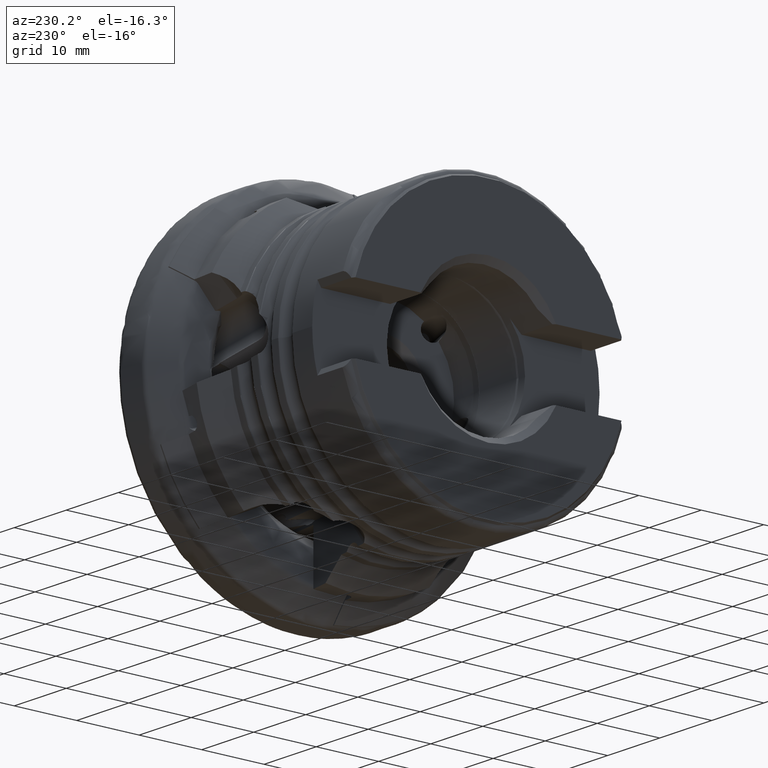
[diagram: clean part render]
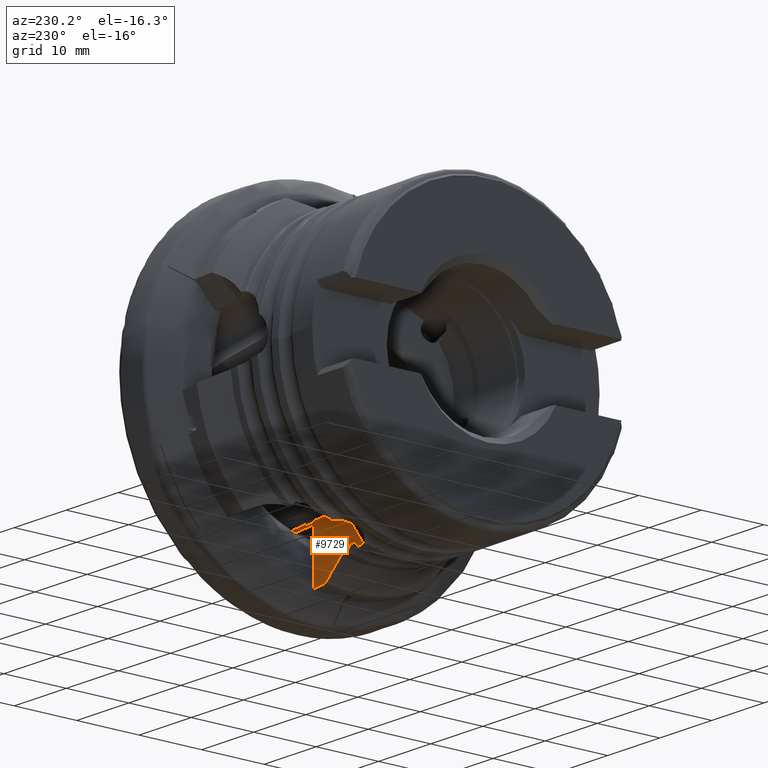
[diagram: same view with one face highlighted and labeled with its STEP entity id]
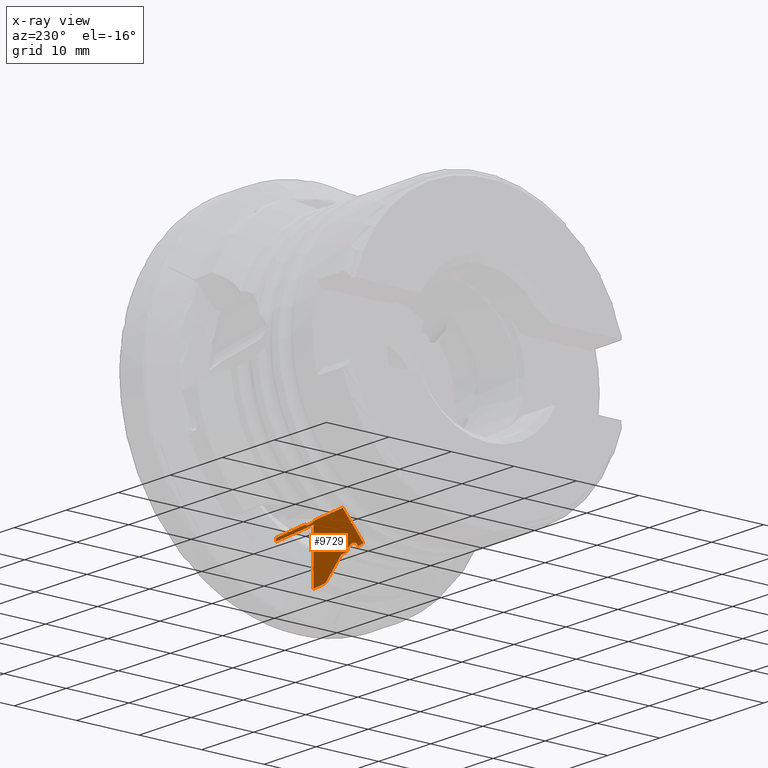
[diagram: x-ray of the same camera — body ghosted, the highlighted face saturated]
A machine part, auxiliary view. The second image highlights one B-rep face of the part: STEP entity #9729.
The next image is the same camera in x-ray: the body ghosted, the highlighted face saturated — about 3% of this face is hidden behind the body in this view.
In plain terms, the highlighted planar face has unit normal (-0.1392, -0.9903, -0).
Its self-contained STEP definition (entity closure, byte-faithful):
#46 = CARTESIAN_POINT ( 'NONE',  ( -1.999999999999986200, 3.098500596731691600, -16.94213243200000100 ) ) ;
#65 = EDGE_CURVE ( 'NONE', #2356, #8409, #7799, .T. ) ;
#92 = VERTEX_POINT ( 'NONE', #6528 ) ;
#169 = CARTESIAN_POINT ( 'NONE',  ( -17.41751930288015200, 5.265291628598455500, -16.47000000000000200 ) ) ;
#372 = CARTESIAN_POINT ( 'NONE',  ( -18.40607010177601000, 5.404223383020981200, -22.26529432916003500 ) ) ;
#452 = VECTOR ( 'NONE', #8694, 1000.000000000000000 ) ;
#501 = CARTESIAN_POINT ( 'NONE',  ( -10.63127897409680100, 4.311547748300319500, -16.94213243200000100 ) ) ;
#540 = B_SPLINE_CURVE_WITH_KNOTS ( 'NONE', 3,
 ( #6286, #3527, #8376, #372 ),
 .UNSPECIFIED., .F., .F.,
 ( 4, 4 ),
 ( 1.991331392997927200E-007, 0.0001999983619013351000 ),
 .UNSPECIFIED. ) ;
#734 = CARTESIAN_POINT ( 'NONE',  ( -20.99445424289538000, 5.767997050744289000, -22.26500168444236700 ) ) ;
#856 = CARTESIAN_POINT ( 'NONE',  ( -17.41751930288015200, 5.265291628598455500, -16.47000000000000200 ) ) ;
#859 = LINE ( 'NONE', #6558, #7116 ) ;
#1006 =( BOUNDED_CURVE ( )  B_SPLINE_CURVE ( 3, ( #1095, #5497, #2351, #8652 ),
 .UNSPECIFIED., .F., .T. ) 
 B_SPLINE_CURVE_WITH_KNOTS ( ( 4, 4 ),
 ( 1.799726035625061100, 1.806937630340256200 ),
 .UNSPECIFIED. ) 
 CURVE ( )  GEOMETRIC_REPRESENTATION_ITEM ( )  RATIONAL_B_SPLINE_CURVE ( ( 1.000000000000000000, 0.9999956660798343700, 0.9999956660798343700, 1.000000000000000000 ) ) 
 REPRESENTATION_ITEM ( '' )  );
#1050 = EDGE_CURVE ( 'NONE', #2586, #9400, #8518, .T. ) ;
#1093 = CARTESIAN_POINT ( 'NONE',  ( -12.51176307190210000, 4.575832553050422500, -25.13726824254642300 ) ) ;
#1095 = CARTESIAN_POINT ( 'NONE',  ( -17.09177741719236500, 5.219511592086369100, -22.39992631104121700 ) ) ;
#1212 = CARTESIAN_POINT ( 'NONE',  ( -21.43883653243956600, 5.830450908643780600, -22.24879482589003000 ) ) ;
#1444 = CARTESIAN_POINT ( 'NONE',  ( -1.999999999999992200, 3.098500596731692500, -16.47000000000000200 ) ) ;
#1679 = ORIENTED_EDGE ( 'NONE', *, *, #6561, .T. ) ;
#1912 = CARTESIAN_POINT ( 'NONE',  ( -8.729553343563967600, 4.044277640810334700, -16.47000000000000200 ) ) ;
#2020 = CARTESIAN_POINT ( 'NONE',  ( -21.05978721798716800, 5.777179001597277300, -22.26261895607755600 ) ) ;
#2051 = VERTEX_POINT ( 'NONE', #3366 ) ;
#2159 = CARTESIAN_POINT ( 'NONE',  ( -19.87527271462111500, 5.610706344577143200, -21.52778656604159500 ) ) ;
#2231 = ORIENTED_EDGE ( 'NONE', *, *, #6722, .T. ) ;
#2351 = CARTESIAN_POINT ( 'NONE',  ( -17.85772871578347700, 5.327159026931732400, -22.37463817755936900 ) ) ;
#2356 = VERTEX_POINT ( 'NONE', #5027 ) ;
#2586 = VERTEX_POINT ( 'NONE', #3178 ) ;
#2700 = DIRECTION ( 'NONE',  ( 0.9902680687415724700, -0.1391731009600498900, 0.0000000000000000000 ) ) ;
#2795 = ORIENTED_EDGE ( 'NONE', *, *, #65, .T. ) ;
#2848 = CARTESIAN_POINT ( 'NONE',  ( -10.63127897409680100, 4.311547748300319500, -16.94213243200000100 ) ) ;
#2873 = CARTESIAN_POINT ( 'NONE',  ( -22.19586378199259300, 5.936844150188407300, -22.22057338450957800 ) ) ;
#3041 = CARTESIAN_POINT ( 'NONE',  ( -20.56510137431623900, 5.707655440212317200, -21.80105751620286700 ) ) ;
#3178 = CARTESIAN_POINT ( 'NONE',  ( -10.63127897409680300, 4.311547748300322200, -25.18358703628468500 ) ) ;
#3251 = ORIENTED_EDGE ( 'NONE', *, *, #6400, .T. ) ;
#3267 = CARTESIAN_POINT ( 'NONE',  ( -44.39937388231479100, 9.057343993010315200, -48.94173482101594900 ) ) ;
#3298 = CARTESIAN_POINT ( 'NONE',  ( -22.19586378199259300, 5.936844150188407300, -22.22057338450957800 ) ) ;
#3366 = CARTESIAN_POINT ( 'NONE',  ( -18.24021278201281900, 5.380913656859963400, -22.36170316003274300 ) ) ;
#3527 = CARTESIAN_POINT ( 'NONE',  ( -18.30709545130390500, 5.390313403029256100, -22.35944129195537000 ) ) ;
#3782 = EDGE_CURVE ( 'NONE', #2586, #2356, #6039, .T. ) ;
#3872 = CARTESIAN_POINT ( 'NONE',  ( -44.39937388231479100, 9.057343993010315200, -48.94173482101594900 ) ) ;
#3987 = LINE ( 'NONE', #9212, #8262 ) ;
#4005 = VECTOR ( 'NONE', #6233, 1000.000000000000000 ) ;
#4048 = CARTESIAN_POINT ( 'NONE',  ( -20.93049235371987400, 5.759007793450421400, -22.23223141898391800 ) ) ;
#4080 = EDGE_CURVE ( 'NONE', #6232, #6861, #6699, .T. ) ;
#4095 = CARTESIAN_POINT ( 'NONE',  ( -18.82730074594232800, 5.463423489354333600, -21.81634681860890600 ) ) ;
#4388 = ORIENTED_EDGE ( 'NONE', *, *, #7699, .T. ) ;
#4420 = CARTESIAN_POINT ( 'NONE',  ( -18.72774135144591800, 5.449431328949345700, -21.89301869045383600 ) ) ;
#4830 = CARTESIAN_POINT ( 'NONE',  ( -20.89392989822397700, 5.753869275436259500, -22.17751001124579000 ) ) ;
#4870 = CARTESIAN_POINT ( 'NONE',  ( -19.14321611765307900, 5.507822499389875200, -21.62775173695806800 ) ) ;
#4892 = ORIENTED_EDGE ( 'NONE', *, *, #5880, .F. ) ;
#4953 = VERTEX_POINT ( 'NONE', #10379 ) ;
#5027 = CARTESIAN_POINT ( 'NONE',  ( -13.44999999999999400, 4.707693154073893100, -25.11254915708649400 ) ) ;
#5134 = CARTESIAN_POINT ( 'NONE',  ( -11.57216996814176300, 4.443781353967350100, -25.16094802525176300 ) ) ;
#5190 = CARTESIAN_POINT ( 'NONE',  ( -10.63127897409680300, 4.311547748300322200, -25.18358703628468500 ) ) ;
#5283 = B_SPLINE_CURVE_WITH_KNOTS ( 'NONE', 3,
 ( #4830, #4048, #734, #6444 ),
 .UNSPECIFIED., .F., .F.,
 ( 4, 4 ),
 ( 3.565975093437033300E-007, 0.0001956915875105522100 ),
 .UNSPECIFIED. ) ;
#5297 = CARTESIAN_POINT ( 'NONE',  ( -21.81753034670565600, 5.883672853397363200, -22.23477957518021600 ) ) ;
#5469 = ORIENTED_EDGE ( 'NONE', *, *, #3782, .T. ) ;
#5497 = CARTESIAN_POINT ( 'NONE',  ( -17.47491526842708600, 5.273358105504971900, -22.38737928311446600 ) ) ;
#5514 = ORIENTED_EDGE ( 'NONE', *, *, #1050, .F. ) ;
#5629 = CARTESIAN_POINT ( 'NONE',  ( -19.38510995725043900, 5.541818461516250200, -21.55230713086845300 ) ) ;
#5680 = CARTESIAN_POINT ( 'NONE',  ( -9.192966182745983900, 4.109406068040774700, -16.77343128295305500 ) ) ;
#5772 = CARTESIAN_POINT ( 'NONE',  ( -18.47342200236234400, 5.413689075348173700, -22.16014548844846700 ) ) ;
#5880 = EDGE_CURVE ( 'NONE', #10293, #8611, #859, .T. ) ;
#5905 = CARTESIAN_POINT ( 'NONE',  ( -13.44999999999999400, 4.707693154073893100, -25.11254915708649400 ) ) ;
#5948 = CARTESIAN_POINT ( 'NONE',  ( -10.00663903751373600, 4.223760330224500600, -16.77343128295305500 ) ) ;
#5999 = CARTESIAN_POINT ( 'NONE',  ( -13.44999999999999400, 4.707693154073893100, -25.11254915708649400 ) ) ;
#6039 =( BOUNDED_CURVE ( )  B_SPLINE_CURVE ( 3, ( #5190, #5134, #1093, #5999 ),
 .UNSPECIFIED., .F., .T. ) 
 B_SPLINE_CURVE_WITH_KNOTS ( ( 4, 4 ),
 ( 1.740357084894127900, 1.756109277582174100 ),
 .UNSPECIFIED. ) 
 CURVE ( )  GEOMETRIC_REPRESENTATION_ITEM ( )  RATIONAL_B_SPLINE_CURVE ( ( 1.000000000000000000, 0.9999793224756841100, 0.9999793224756841100, 1.000000000000000000 ) ) 
 REPRESENTATION_ITEM ( '' )  );
#6062 = EDGE_CURVE ( 'NONE', #10459, #92, #8498, .T. ) ;
#6141 = EDGE_CURVE ( 'Kante58', #9400, #10293, #3987, .T. ) ;
#6205 = DIRECTION ( 'NONE',  ( 0.9902680687415723600, -0.1391731009600499800, -0.0000000000000000000 ) ) ;
#6232 = VERTEX_POINT ( 'NONE', #10105 ) ;
#6233 = DIRECTION ( 'NONE',  ( 1.284980352575412900E-016, -1.606225440719266200E-017, 1.000000000000000000 ) ) ;
#6286 = CARTESIAN_POINT ( 'NONE',  ( -18.24021278201281900, 5.380913656859963400, -22.36170316003274300 ) ) ;
#6362 = VECTOR ( 'NONE', #6729, 1000.000000000000200 ) ;
#6400 = EDGE_CURVE ( 'NONE', #6861, #10459, #8899, .T. ) ;
#6444 = CARTESIAN_POINT ( 'NONE',  ( -21.05978721798716800, 5.777179001597277300, -22.26261895607755600 ) ) ;
#6491 = AXIS2_PLACEMENT_3D ( 'NONE', #3267, #7964, #10119 ) ;
#6494 = CARTESIAN_POINT ( 'NONE',  ( -17.41751930288015200, 5.265291628598455500, -16.47000000000000200 ) ) ;
#6528 = CARTESIAN_POINT ( 'NONE',  ( -10.98786893926590700, 4.361663199651677500, -16.47000000000000200 ) ) ;
#6529 = CARTESIAN_POINT ( 'NONE',  ( -20.89392989822397700, 5.753869275436259500, -22.17751001124579000 ) ) ;
#6558 = CARTESIAN_POINT ( 'NONE',  ( -1.999999999999991800, 3.098500596731691600, -5.807524139047354400E-016 ) ) ;
#6561 = EDGE_CURVE ( 'NONE', #4953, #8611, #10556, .T. ) ;
#6699 =( BOUNDED_CURVE ( )  B_SPLINE_CURVE ( 3, ( #2020, #1212, #5297, #2873 ),
 .UNSPECIFIED., .F., .T. ) 
 B_SPLINE_CURVE_WITH_KNOTS ( ( 4, 4 ),
 ( 1.824697224687572300, 1.831875866980178000 ),
 .UNSPECIFIED. ) 
 CURVE ( )  GEOMETRIC_REPRESENTATION_ITEM ( )  RATIONAL_B_SPLINE_CURVE ( ( 1.000000000000000000, 0.9999957055958468300, 0.9999957055958468300, 1.000000000000000000 ) ) 
 REPRESENTATION_ITEM ( '' )  );
#6704 =( BOUNDED_CURVE ( )  B_SPLINE_CURVE ( 3, ( #1912, #5680, #5948, #9755 ),
 .UNSPECIFIED., .F., .F. ) 
 B_SPLINE_CURVE_WITH_KNOTS ( ( 4, 4 ),
 ( 3.404859809271589400, 4.361673562863455100 ),
 .UNSPECIFIED. ) 
 CURVE ( )  GEOMETRIC_REPRESENTATION_ITEM ( )  RATIONAL_B_SPLINE_CURVE ( ( 1.000000000000000000, 0.9251529786487046000, 0.9251529786487046000, 1.000000000000000000 ) ) 
 REPRESENTATION_ITEM ( '' )  );
#6706 = ORIENTED_EDGE ( 'NONE', *, *, #4080, .T. ) ;
#6713 = CARTESIAN_POINT ( 'NONE',  ( -17.09177741719236500, 5.219511592086369100, -22.39992631104121700 ) ) ;
#6722 = EDGE_CURVE ( 'NONE', #9711, #6232, #5283, .T. ) ;
#6729 = DIRECTION ( 'NONE',  ( 0.9902680687415724700, -0.1391731009600498900, 0.0000000000000000000 ) ) ;
#6815 = CARTESIAN_POINT ( 'NONE',  ( -14.66744534277638800, 4.878793938752207500, -24.21315995393682700 ) ) ;
#6861 = VERTEX_POINT ( 'NONE', #3298 ) ;
#6895 = CARTESIAN_POINT ( 'NONE',  ( -15.88177324624308400, 5.049456595907801500, -23.30950282935201300 ) ) ;
#6978 = CARTESIAN_POINT ( 'NONE',  ( -18.55134940448594000, 5.424641057488814000, -22.06477410000214700 ) ) ;
#7116 = VECTOR ( 'NONE', #8207, 1000.000000000000000 ) ;
#7699 = EDGE_CURVE ( 'NONE', #8409, #2051, #1006, .T. ) ;
#7713 = CARTESIAN_POINT ( 'NONE',  ( -18.40607010177601000, 5.404223383020981200, -22.26529432916003500 ) ) ;
#7799 = B_SPLINE_CURVE_WITH_KNOTS ( 'NONE', 3,
 ( #5905, #6815, #6895, #6713 ),
 .UNSPECIFIED., .F., .F.,
 ( 4, 4 ),
 ( 2.502383203222509200E-007, 0.004570023052667729000 ),
 .UNSPECIFIED. ) ;
#7964 = DIRECTION ( 'NONE',  ( -0.1391731009600499200, -0.9902680687415725800, -9.348949477730527800E-017 ) ) ;
#8207 = DIRECTION ( 'NONE',  ( 1.560832153439438500E-032, -9.440826956695799200E-017, 1.000000000000000000 ) ) ;
#8262 = VECTOR ( 'NONE', #6205, 1000.000000000000200 ) ;
#8376 = CARTESIAN_POINT ( 'NONE',  ( -18.36975526037837300, 5.399119664898872600, -22.32198854922428000 ) ) ;
#8409 = VERTEX_POINT ( 'NONE', #9049 ) ;
#8423 = PLANE ( 'NONE',  #6491 ) ;
#8476 = EDGE_LOOP ( 'NONE', ( #8987, #1679, #4892, #9022, #5514, #5469, #2795, #4388, #8522, #10006, #2231, #6706, #3251, #9721 ) ) ;
#8498 = LINE ( 'NONE', #856, #6362 ) ;
#8518 = LINE ( 'NONE', #501, #4005 ) ;
#8522 = ORIENTED_EDGE ( 'NONE', *, *, #9949, .T. ) ;
#8611 = VERTEX_POINT ( 'NONE', #1444 ) ;
#8652 = CARTESIAN_POINT ( 'NONE',  ( -18.24021278201281900, 5.380913656859963400, -22.36170316003274300 ) ) ;
#8694 = DIRECTION ( 'NONE',  ( 0.6365320448552990200, -0.08945874489877370100, 0.7660444431189797900 ) ) ;
#8863 = B_SPLINE_CURVE_WITH_KNOTS ( 'NONE', 3,
 ( #10212, #5772, #6978, #4420, #4095, #4870, #5629, #2159, #9136, #3041, #9530, #9229 ),
 .UNSPECIFIED., .F., .F.,
 ( 4, 2, 2, 2, 2, 4 ),
 ( 3.667358128206094000E-007, 0.0003708136106012151000, 0.0007412604853896095700, 0.001482154234966393000, 0.002223047984543176700, 0.002963941734119959600 ),
 .UNSPECIFIED. ) ;
#8899 = LINE ( 'NONE', #3872, #452 ) ;
#8987 = ORIENTED_EDGE ( 'NONE', *, *, #10039, .F. ) ;
#9022 = ORIENTED_EDGE ( 'NONE', *, *, #6141, .F. ) ;
#9026 = VERTEX_POINT ( 'NONE', #7713 ) ;
#9049 = CARTESIAN_POINT ( 'NONE',  ( -17.09177741719236500, 5.219511592086369100, -22.39992631104121700 ) ) ;
#9136 = CARTESIAN_POINT ( 'NONE',  ( -20.12512364647892900, 5.645820603091604700, -21.57940549959432600 ) ) ;
#9212 = CARTESIAN_POINT ( 'NONE',  ( 14.12542274444251200, 0.8322202242990705000, -16.94213243200000100 ) ) ;
#9229 = CARTESIAN_POINT ( 'NONE',  ( -20.89392989822397700, 5.753869275436259500, -22.17751001124579000 ) ) ;
#9400 = VERTEX_POINT ( 'NONE', #2848 ) ;
#9530 = CARTESIAN_POINT ( 'NONE',  ( -20.75505808333713300, 5.734352114655429500, -21.96966671673267900 ) ) ;
#9711 = VERTEX_POINT ( 'NONE', #6529 ) ;
#9721 = ORIENTED_EDGE ( 'NONE', *, *, #6062, .T. ) ;
#9729 = ADVANCED_FACE ( 'NONE', ( #9892 ), #8423, .F. ) ;
#9755 = CARTESIAN_POINT ( 'NONE',  ( -10.98786893926590700, 4.361663199651677500, -16.47000000000000200 ) ) ;
#9765 = EDGE_CURVE ( 'NONE', #9026, #9711, #8863, .T. ) ;
#9892 = FACE_OUTER_BOUND ( 'NONE', #8476, .T. ) ;
#9949 = EDGE_CURVE ( 'NONE', #2051, #9026, #540, .T. ) ;
#10006 = ORIENTED_EDGE ( 'NONE', *, *, #9765, .T. ) ;
#10039 = EDGE_CURVE ( 'NONE', #4953, #92, #6704, .T. ) ;
#10105 = CARTESIAN_POINT ( 'NONE',  ( -21.05978721798716800, 5.777179001597277300, -22.26261895607755600 ) ) ;
#10119 = DIRECTION ( 'NONE',  ( 0.9902680687415724700, -0.1391731009600498900, 0.0000000000000000000 ) ) ;
#10212 = CARTESIAN_POINT ( 'NONE',  ( -18.40607010177601000, 5.404223383020981200, -22.26529432916003500 ) ) ;
#10293 = VERTEX_POINT ( 'NONE', #46 ) ;
#10294 = VECTOR ( 'NONE', #2700, 1000.000000000000200 ) ;
#10379 = CARTESIAN_POINT ( 'NONE',  ( -8.729553343563967600, 4.044277640810334700, -16.47000000000000200 ) ) ;
#10459 = VERTEX_POINT ( 'NONE', #6494 ) ;
#10556 = LINE ( 'NONE', #169, #10294 ) ;